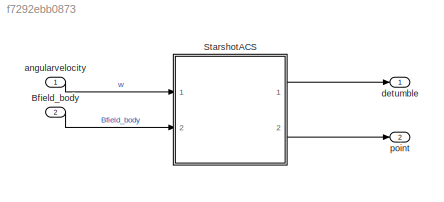
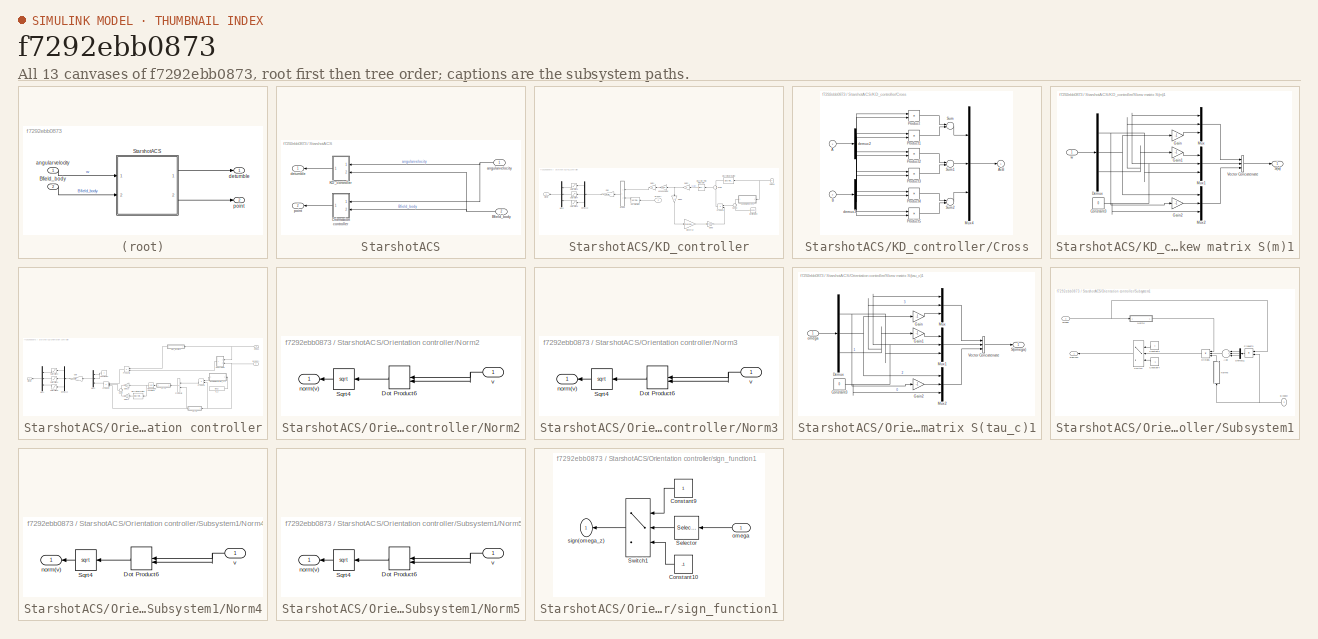
[diagram: thumbnail index - all 13 canvases of the model, root first then tree order]
MODEL slx_f7292ebb0873
KIND model
CONFIG AbsTol = auto
CONFIG EnableMultiTasking = off
CONFIG FixedStep = .1
CONFIG MaxStep = 4.0
CONFIG MinStep = .001
CONFIG RelTol = 1e-6
CONFIG SampleTimeConstraint = Unconstrained
CONFIG Solver = FixedStepAuto
CONFIG SolverName = FixedStepAuto
CONFIG StartTime = 0.0
CONFIG StopTime = 6000
BLOCK [Inport] Bfield_body
  IconDisplay = Port number
  Interpolate = off
  OutDataTypeStr = double
  Port = 2
  PortDimensions = 3
  SampleTime = [0.10000000000000001 0]
  SignalType = real
  VarSizeSig = No
BLOCK [SubSystem] StarshotACS
  Ports = [2, 2]
  RequestExecContextInheritance = off
  Tag = starshotsimv5
  TreatAsAtomicUnit = on
  Variant = off
BLOCK [Inport] StarshotACS/Bfield_body
  IconDisplay = Port number
  Port = 2
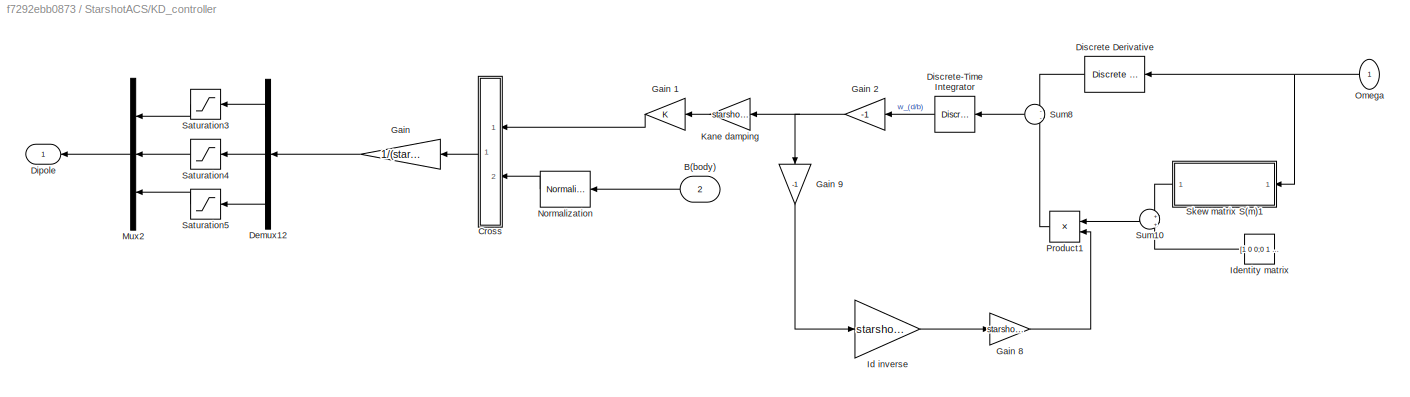
BLOCK [SubSystem] StarshotACS/KD_controller
  Ports = [2, 1]
  RequestExecContextInheritance = off
  Variant = off
BLOCK [Inport] StarshotACS/KD_controller/B(body)
  IconDisplay = Port number
  Port = 2
BLOCK [SubSystem] StarshotACS/KD_controller/Cross
  Ports = [2, 1]
  RequestExecContextInheritance = off
  Variant = off
BLOCK [Inport] StarshotACS/KD_controller/Cross/A
  IconDisplay = Port number
BLOCK [Outport] StarshotACS/KD_controller/Cross/AxB
  IconDisplay = Port number
  InitialOutput = 0
BLOCK [Inport] StarshotACS/KD_controller/Cross/B
  IconDisplay = Port number
  Port = 2
BLOCK [Mux] StarshotACS/KD_controller/Cross/Mux4
  Inputs = 3
  Ports = [3, 1]
BLOCK [Product] StarshotACS/KD_controller/Cross/Product
  Ports = [2, 1]
  RndMeth = Floor
BLOCK [Product] StarshotACS/KD_controller/Cross/Product1
  Ports = [2, 1]
  RndMeth = Floor
BLOCK [Product] StarshotACS/KD_controller/Cross/Product2
  Ports = [2, 1]
  RndMeth = Floor
BLOCK [Product] StarshotACS/KD_controller/Cross/Product3
  Ports = [2, 1]
  RndMeth = Floor
BLOCK [Product] StarshotACS/KD_controller/Cross/Product4
  Ports = [2, 1]
  RndMeth = Floor
BLOCK [Product] StarshotACS/KD_controller/Cross/Product5
  Ports = [2, 1]
  RndMeth = Floor
BLOCK [Sum] StarshotACS/KD_controller/Cross/Sum
  Inputs = +-
  Ports = [2, 1]
BLOCK [Sum] StarshotACS/KD_controller/Cross/Sum1
  Inputs = +-
  Ports = [2, 1]
BLOCK [Sum] StarshotACS/KD_controller/Cross/Sum2
  Inputs = +-
  Ports = [2, 1]
BLOCK [Demux] StarshotACS/KD_controller/Cross/demux2
  Outputs = 3
  Ports = [1, 3]
BLOCK [Demux] StarshotACS/KD_controller/Cross/demux3
  Outputs = 3
  Ports = [1, 3]
BLOCK [Demux] StarshotACS/KD_controller/Demux12
  DisplayOption = bar
  Outputs = 3
  Ports = [1, 3]
BLOCK [Outport] StarshotACS/KD_controller/Dipole
  IconDisplay = Port number
BLOCK [Reference] StarshotACS/KD_controller/Discrete Derivative  REF=simulink/Discrete/Discrete Derivative
  Ports = [1, 1]
  SourceBlock = simulink/Discrete/Discrete Derivative
  SourceProductBaseCode = SL
  SourceProductName = Simulink
  SourceType = Discrete Derivative
BLOCK [DiscreteIntegrator] StarshotACS/KD_controller/Discrete-Time Integrator
  ICPrevOutput = DiscIntNeverNeededParam
  ICPrevScaledInput = DiscIntNeverNeededParam
  InitialCondition = starshot.cmd.wdb0
  InitialConditionSetting = State (most efficient)
  Ports = [1, 1]
  SampleTime = -1
BLOCK [Gain] StarshotACS/KD_controller/Gain
  Gain = 1/(starshot.magnetorq.A*starshot.magnetorq.n)
  OutDataTypeStr = Inherit: Inherit via internal rule
  ParamDataTypeStr = Inherit: Inherit via internal rule
  SaturateOnIntegerOverflow = off
BLOCK [Gain] StarshotACS/KD_controller/Gain 1
BLOCK [Gain] StarshotACS/KD_controller/Gain 2
  Gain = -1
BLOCK [Gain] StarshotACS/KD_controller/Gain 8
  Gain = starshot.cmd.c
BLOCK [Gain] StarshotACS/KD_controller/Gain 9
  Gain = -1
BLOCK [Gain] StarshotACS/KD_controller/Id inverse
  Gain = starshot.cmd.invId
  Multiplication = Matrix(K*u)
BLOCK [Constant] StarshotACS/KD_controller/Identity matrix
  Value = [1 0 0;0 1 0;0 0 1]
BLOCK [Gain] StarshotACS/KD_controller/Kane damping
  Gain = starshot.cmd.c
BLOCK [Mux] StarshotACS/KD_controller/Mux2
  DisplayOption = bar
  Inputs = 3
  Ports = [3, 1]
BLOCK [Reference] StarshotACS/KD_controller/Normalization  REF=dspmathops/Normalization
  Ports = [1, 1]
  SourceBlock = dspmathops/Normalization
  SourceProductBaseCode = DS
  SourceProductName = DSP System Toolbox
  SourceType = Normalization
BLOCK [Inport] StarshotACS/KD_controller/Omega
  IconDisplay = Port number
BLOCK [Product] StarshotACS/KD_controller/Product1
  InputSameDT = off
  Multiplication = Matrix(*)
  OutDataTypeStr = Inherit: Inherit via internal rule
  Ports = [2, 1]
  RndMeth = Floor
  SaturateOnIntegerOverflow = off
BLOCK [Saturate] StarshotACS/KD_controller/Saturation3
  InputPortMap = u0
  LowerLimit = -starshot.magnetorq.m_max_x/(starshot.magnetorq.A*starshot.magnetorq.n)
  Ports = [1, 1]
  UpperLimit = starshot.magnetorq.m_max_x/(starshot.magnetorq.A*starshot.magnetorq.n)
BLOCK [Saturate] StarshotACS/KD_controller/Saturation4
  InputPortMap = u0
  LowerLimit = -starshot.magnetorq.m_max_y/(starshot.magnetorq.A*starshot.magnetorq.n)
  Ports = [1, 1]
  UpperLimit = starshot.magnetorq.m_max_y/(starshot.magnetorq.A*starshot.magnetorq.n)
BLOCK [Saturate] StarshotACS/KD_controller/Saturation5
  InputPortMap = u0
  LowerLimit = -starshot.magnetorq.m_max_z/(starshot.magnetorq.A*starshot.magnetorq.n)
  Ports = [1, 1]
  UpperLimit = starshot.magnetorq.m_max_z/(starshot.magnetorq.A*starshot.magnetorq.n)
BLOCK [SubSystem] StarshotACS/KD_controller/Skew matrix S(m)1
  Ports = [1, 1]
  RequestExecContextInheritance = off
  Variant = off
BLOCK [Constant] StarshotACS/KD_controller/Skew matrix S(m)1/Constant3
  Value = 0
BLOCK [Demux] StarshotACS/KD_controller/Skew matrix S(m)1/Demux
  DisplayOption = bar
  Outputs = 3
  Ports = [1, 3]
BLOCK [Gain] StarshotACS/KD_controller/Skew matrix S(m)1/Gain
  Gain = -1
  OutDataTypeStr = Inherit: Inherit via internal rule
  ParamDataTypeStr = Inherit: Inherit via internal rule
  SaturateOnIntegerOverflow = off
BLOCK [Gain] StarshotACS/KD_controller/Skew matrix S(m)1/Gain1
  Gain = -1
  OutDataTypeStr = Inherit: Inherit via internal rule
  ParamDataTypeStr = Inherit: Inherit via internal rule
  SaturateOnIntegerOverflow = off
BLOCK [Gain] StarshotACS/KD_controller/Skew matrix S(m)1/Gain2
  Gain = -1
  OutDataTypeStr = Inherit: Inherit via internal rule
  ParamDataTypeStr = Inherit: Inherit via internal rule
  SaturateOnIntegerOverflow = off
BLOCK [Mux] StarshotACS/KD_controller/Skew matrix S(m)1/Mux
  DisplayOption = bar
  Inputs = 3
  Ports = [3, 1]
BLOCK [Mux] StarshotACS/KD_controller/Skew matrix S(m)1/Mux1
  DisplayOption = bar
  Inputs = 3
  Ports = [3, 1]
BLOCK [Mux] StarshotACS/KD_controller/Skew matrix S(m)1/Mux2
  DisplayOption = bar
  Inputs = 3
  Ports = [3, 1]
BLOCK [Outport] StarshotACS/KD_controller/Skew matrix S(m)1/S(w)
  IconDisplay = Port number
BLOCK [Concatenate] StarshotACS/KD_controller/Skew matrix S(m)1/Vector Concatenate
  ConcatenateDimension = 2
  Mode = Multidimensional array
  NumInputs = 3
  Ports = [3, 1]
BLOCK [Inport] StarshotACS/KD_controller/Skew matrix S(m)1/w
  IconDisplay = Port number
BLOCK [Sum] StarshotACS/KD_controller/Sum10
  IconShape = round
  Inputs = +|+
  Ports = [2, 1]
BLOCK [Sum] StarshotACS/KD_controller/Sum8
  IconShape = round
  InputSameDT = off
  Inputs = --
  OutDataTypeStr = Inherit: Inherit via internal rule
  Ports = [2, 1]
  SaturateOnIntegerOverflow = off
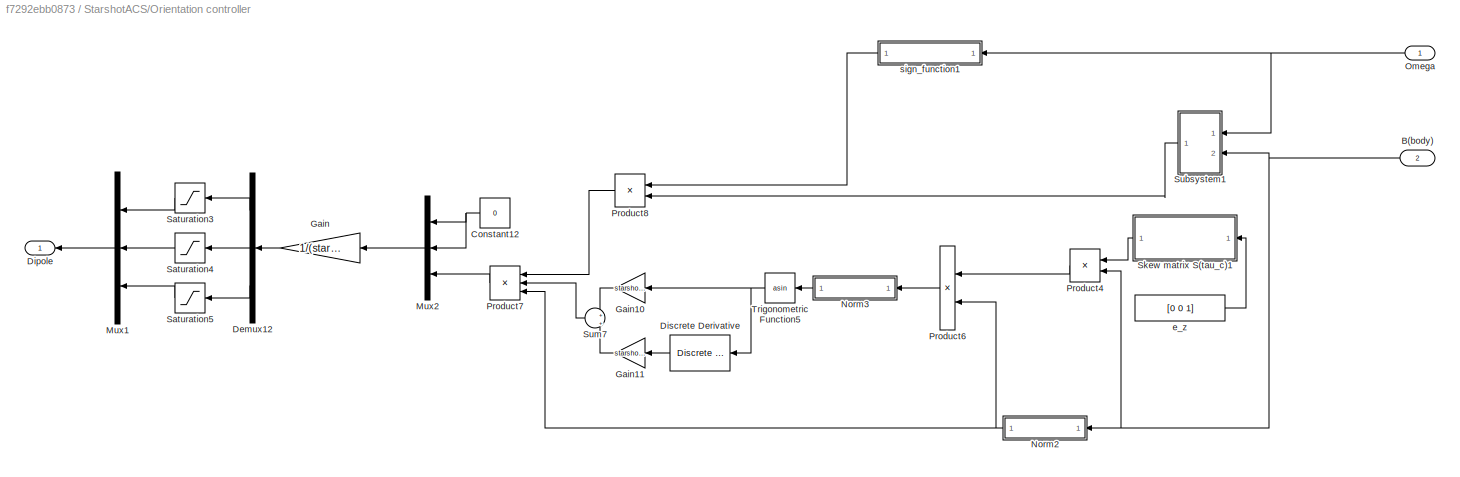
BLOCK [SubSystem] StarshotACS/Orientation controller
  Ports = [2, 1]
  RequestExecContextInheritance = off
  Variant = off
BLOCK [Inport] StarshotACS/Orientation controller/B(body)
  IconDisplay = Port number
  Port = 2
BLOCK [Constant] StarshotACS/Orientation controller/Constant12
  Value = 0
BLOCK [Demux] StarshotACS/Orientation controller/Demux12
  DisplayOption = bar
  Outputs = 3
  Ports = [1, 3]
BLOCK [Outport] StarshotACS/Orientation controller/Dipole
  IconDisplay = Port number
BLOCK [Reference] StarshotACS/Orientation controller/Discrete Derivative  REF=simulink/Discrete/Discrete Derivative
  Ports = [1, 1]
  SourceBlock = simulink/Discrete/Discrete Derivative
  SourceProductBaseCode = SL
  SourceProductName = Simulink
  SourceType = Discrete Derivative
BLOCK [Gain] StarshotACS/Orientation controller/Gain
  Gain = 1/(starshot.magnetorq.A*starshot.magnetorq.n)
  OutDataTypeStr = Inherit: Inherit via internal rule
  ParamDataTypeStr = Inherit: Inherit via internal rule
  SaturateOnIntegerOverflow = off
BLOCK [Gain] StarshotACS/Orientation controller/Gain10
  Gain = starshot.controller.Kp*starshot.IC.massproperties.Izp
  OutDataTypeStr = Inherit: Inherit via internal rule
  ParamDataTypeStr = Inherit: Inherit via internal rule
  SaturateOnIntegerOverflow = off
BLOCK [Gain] StarshotACS/Orientation controller/Gain11
  Gain = starshot.controller.Kd*starshot.IC.massproperties.Izp
  OutDataTypeStr = Inherit: Inherit via internal rule
  ParamDataTypeStr = Inherit: Inherit via internal rule
  SaturateOnIntegerOverflow = off
BLOCK [Mux] StarshotACS/Orientation controller/Mux1
  DisplayOption = bar
  Inputs = 3
  Ports = [3, 1]
BLOCK [Mux] StarshotACS/Orientation controller/Mux2
  DisplayOption = bar
  Inputs = 3
  Ports = [3, 1]
BLOCK [SubSystem] StarshotACS/Orientation controller/Norm2
  Ports = [1, 1]
  RequestExecContextInheritance = off
  Variant = off
BLOCK [DotProduct] StarshotACS/Orientation controller/Norm2/Dot Product6
  OutDataTypeStr = Inherit: Inherit via internal rule
BLOCK [Sqrt] StarshotACS/Orientation controller/Norm2/Sqrt4
BLOCK [Outport] StarshotACS/Orientation controller/Norm2/norm(v)
  IconDisplay = Port number
BLOCK [Inport] StarshotACS/Orientation controller/Norm2/v
  IconDisplay = Port number
BLOCK [SubSystem] StarshotACS/Orientation controller/Norm3
  Ports = [1, 1]
  RequestExecContextInheritance = off
  Variant = off
BLOCK [DotProduct] StarshotACS/Orientation controller/Norm3/Dot Product6
  OutDataTypeStr = Inherit: Inherit via internal rule
BLOCK [Sqrt] StarshotACS/Orientation controller/Norm3/Sqrt4
BLOCK [Outport] StarshotACS/Orientation controller/Norm3/norm(v)
  IconDisplay = Port number
BLOCK [Inport] StarshotACS/Orientation controller/Norm3/v
  IconDisplay = Port number
BLOCK [Inport] StarshotACS/Orientation controller/Omega
  IconDisplay = Port number
BLOCK [Product] StarshotACS/Orientation controller/Product4
  InputSameDT = off
  Multiplication = Matrix(*)
  OutDataTypeStr = Inherit: Inherit via internal rule
  Ports = [2, 1]
  RndMeth = Floor
  SaturateOnIntegerOverflow = off
BLOCK [Product] StarshotACS/Orientation controller/Product6
  InputSameDT = off
  Inputs = */
  OutDataTypeStr = Inherit: Inherit via internal rule
  Ports = [2, 1]
  RndMeth = Floor
  SaturateOnIntegerOverflow = off
BLOCK [Product] StarshotACS/Orientation controller/Product7
  InputSameDT = off
  Inputs = **/
  OutDataTypeStr = Inherit: Inherit via internal rule
  Ports = [3, 1]
  RndMeth = Floor
  SaturateOnIntegerOverflow = off
BLOCK [Product] StarshotACS/Orientation controller/Product8
  InputSameDT = off
  Inputs = **
  OutDataTypeStr = Inherit: Inherit via internal rule
  Ports = [2, 1]
  RndMeth = Floor
  SaturateOnIntegerOverflow = off
BLOCK [Saturate] StarshotACS/Orientation controller/Saturation3
  InputPortMap = u0
  LowerLimit = -starshot.magnetorq.m_max_x/(starshot.magnetorq.A*starshot.magnetorq.n)
  Ports = [1, 1]
  UpperLimit = starshot.magnetorq.m_max_x/(starshot.magnetorq.A*starshot.magnetorq.n)
BLOCK [Saturate] StarshotACS/Orientation controller/Saturation4
  InputPortMap = u0
  LowerLimit = -starshot.magnetorq.m_max_y/(starshot.magnetorq.A*starshot.magnetorq.n)
  Ports = [1, 1]
  UpperLimit = starshot.magnetorq.m_max_y/(starshot.magnetorq.A*starshot.magnetorq.n)
BLOCK [Saturate] StarshotACS/Orientation controller/Saturation5
  InputPortMap = u0
  LowerLimit = -starshot.magnetorq.m_max_z/(starshot.magnetorq.A*starshot.magnetorq.n)
  Ports = [1, 1]
  UpperLimit = starshot.magnetorq.m_max_z/(starshot.magnetorq.A*starshot.magnetorq.n)
BLOCK [SubSystem] StarshotACS/Orientation controller/Skew matrix S(tau_c)1
  Ports = [1, 1]
  RequestExecContextInheritance = off
  Variant = off
BLOCK [Constant] StarshotACS/Orientation controller/Skew matrix S(tau_c)1/Constant3
  Value = 0
BLOCK [Demux] StarshotACS/Orientation controller/Skew matrix S(tau_c)1/Demux
  DisplayOption = bar
  Outputs = 3
  Ports = [1, 3]
BLOCK [Gain] StarshotACS/Orientation controller/Skew matrix S(tau_c)1/Gain
  Gain = -1
  OutDataTypeStr = Inherit: Inherit via internal rule
  ParamDataTypeStr = Inherit: Inherit via internal rule
  SaturateOnIntegerOverflow = off
BLOCK [Gain] StarshotACS/Orientation controller/Skew matrix S(tau_c)1/Gain1
  Gain = -1
  OutDataTypeStr = Inherit: Inherit via internal rule
  ParamDataTypeStr = Inherit: Inherit via internal rule
  SaturateOnIntegerOverflow = off
BLOCK [Gain] StarshotACS/Orientation controller/Skew matrix S(tau_c)1/Gain2
  Gain = -1
  OutDataTypeStr = Inherit: Inherit via internal rule
  ParamDataTypeStr = Inherit: Inherit via internal rule
  SaturateOnIntegerOverflow = off
BLOCK [Mux] StarshotACS/Orientation controller/Skew matrix S(tau_c)1/Mux
  DisplayOption = bar
  Inputs = 3
  Ports = [3, 1]
BLOCK [Mux] StarshotACS/Orientation controller/Skew matrix S(tau_c)1/Mux1
  DisplayOption = bar
  Inputs = 3
  Ports = [3, 1]
BLOCK [Mux] StarshotACS/Orientation controller/Skew matrix S(tau_c)1/Mux2
  DisplayOption = bar
  Inputs = 3
  Ports = [3, 1]
BLOCK [Outport] StarshotACS/Orientation controller/Skew matrix S(tau_c)1/S(omega)
  IconDisplay = Port number
BLOCK [Concatenate] StarshotACS/Orientation controller/Skew matrix S(tau_c)1/Vector Concatenate
  ConcatenateDimension = 2
  Mode = Multidimensional array
  NumInputs = 3
  Ports = [3, 1]
BLOCK [Inport] StarshotACS/Orientation controller/Skew matrix S(tau_c)1/omega
  IconDisplay = Port number
BLOCK [SubSystem] StarshotACS/Orientation controller/Subsystem1
  Ports = [2, 1]
  RequestExecContextInheritance = off
  Variant = off
BLOCK [Sum] StarshotACS/Orientation controller/Subsystem1/Add
  InputSameDT = off
  Inputs = 3
  OutDataTypeStr = Inherit: Inherit via internal rule
  Ports = [3, 1]
  SaturateOnIntegerOverflow = off
BLOCK [Inport] StarshotACS/Orientation controller/Subsystem1/B(body)
  IconDisplay = Port number
  Port = 2
BLOCK [Constant] StarshotACS/Orientation controller/Subsystem1/Constant3
BLOCK [Constant] StarshotACS/Orientation controller/Subsystem1/Constant4
  Value = -1
BLOCK [Demux] StarshotACS/Orientation controller/Subsystem1/Demux11
  DisplayOption = bar
  Outputs = 3
  Ports = [1, 3]
BLOCK [Product] StarshotACS/Orientation controller/Subsystem1/Divide6
  InputSameDT = off
  Inputs = /*/
  OutDataTypeStr = Inherit: Inherit via internal rule
  Ports = [3, 1]
  RndMeth = Floor
  SaturateOnIntegerOverflow = off
BLOCK [SubSystem] StarshotACS/Orientation controller/Subsystem1/Norm4
  Ports = [1, 1]
  RequestExecContextInheritance = off
  Variant = off
BLOCK [DotProduct] StarshotACS/Orientation controller/Subsystem1/Norm4/Dot Product6
  OutDataTypeStr = Inherit: Inherit via internal rule
BLOCK [Sqrt] StarshotACS/Orientation controller/Subsystem1/Norm4/Sqrt4
BLOCK [Outport] StarshotACS/Orientation controller/Subsystem1/Norm4/norm(v)
  IconDisplay = Port number
BLOCK [Inport] StarshotACS/Orientation controller/Subsystem1/Norm4/v
  IconDisplay = Port number
BLOCK [SubSystem] StarshotACS/Orientation controller/Subsystem1/Norm5
  Ports = [1, 1]
  RequestExecContextInheritance = off
  Variant = off
BLOCK [DotProduct] StarshotACS/Orientation controller/Subsystem1/Norm5/Dot Product6
  OutDataTypeStr = Inherit: Inherit via internal rule
BLOCK [Sqrt] StarshotACS/Orientation controller/Subsystem1/Norm5/Sqrt4
BLOCK [Outport] StarshotACS/Orientation controller/Subsystem1/Norm5/norm(v)
  IconDisplay = Port number
BLOCK [Inport] StarshotACS/Orientation controller/Subsystem1/Norm5/v
  IconDisplay = Port number
BLOCK [Product] StarshotACS/Orientation controller/Subsystem1/Product3
  InputSameDT = off
  OutDataTypeStr = Inherit: Inherit via internal rule
  Ports = [2, 1]
  RndMeth = Floor
  SaturateOnIntegerOverflow = off
BLOCK [Switch] StarshotACS/Orientation controller/Subsystem1/Switch
  Criteria = u2 > Threshold
  InputSameDT = off
  SaturateOnIntegerOverflow = off
  ZeroCross = off
BLOCK [Inport] StarshotACS/Orientation controller/Subsystem1/omega
  IconDisplay = Port number
BLOCK [Outport] StarshotACS/Orientation controller/Subsystem1/sign(cos)
  IconDisplay = Port number
BLOCK [Sum] StarshotACS/Orientation controller/Sum7
  IconShape = round
  InputSameDT = off
  Inputs = +|+
  OutDataTypeStr = Inherit: Inherit via internal rule
  Ports = [2, 1]
  SaturateOnIntegerOverflow = off
BLOCK [Trigonometry] StarshotACS/Orientation controller/Trigonometric Function5
  Operator = asin
  Ports = [1, 1]
BLOCK [Constant] StarshotACS/Orientation controller/e_z
  Value = [0 0 1]
BLOCK [SubSystem] StarshotACS/Orientation controller/sign_function1
  Ports = [1, 1]
  RequestExecContextInheritance = off
  Variant = off
BLOCK [Constant] StarshotACS/Orientation controller/sign_function1/Constant10
  Value = -1
BLOCK [Constant] StarshotACS/Orientation controller/sign_function1/Constant9
BLOCK [Selector] StarshotACS/Orientation controller/sign_function1/Selector
  IndexOptions = Index vector (dialog)
  Indices = [3]
  InputPortWidth = 3
  OutputSizes = 1
  Ports = [1, 1]
BLOCK [Switch] StarshotACS/Orientation controller/sign_function1/Switch1
  InputSameDT = off
  SaturateOnIntegerOverflow = off
  ZeroCross = off
BLOCK [Inport] StarshotACS/Orientation controller/sign_function1/omega
  IconDisplay = Port number
BLOCK [Outport] StarshotACS/Orientation controller/sign_function1/sign(omega_z)
  IconDisplay = Port number
BLOCK [Inport] StarshotACS/angularvelocity
  IconDisplay = Port number
BLOCK [Outport] StarshotACS/detumble
  IconDisplay = Port number
BLOCK [Outport] StarshotACS/point
  IconDisplay = Port number
  Port = 2
BLOCK [Inport] angularvelocity
  IconDisplay = Port number
  Interpolate = off
  OutDataTypeStr = double
  PortDimensions = 3
  SampleTime = [0.10000000000000001 0]
  SignalType = real
  VarSizeSig = No
BLOCK [Outport] detumble
  IconDisplay = Port number
  OutDataTypeStr = double
  PortDimensions = 3
  SampleTime = [0.10000000000000001 0]
  SignalType = real
  VarSizeSig = No
BLOCK [Outport] point
  IconDisplay = Port number
  OutDataTypeStr = double
  Port = 2
  PortDimensions = 3
  SampleTime = [0.10000000000000001 0]
  SignalType = real
  VarSizeSig = No
LINE Bfield_body:1 -> StarshotACS:2
NET StarshotACS/Bfield_body:1 -> StarshotACS/KD_controller:2, StarshotACS/Orientation controller:2
LINE StarshotACS/KD_controller/B(body):1 -> StarshotACS/KD_controller/Normalization:1
LINE StarshotACS/KD_controller/Cross/A:1 -> StarshotACS/KD_controller/Cross/demux2:1
LINE StarshotACS/KD_controller/Cross/B:1 -> StarshotACS/KD_controller/Cross/demux3:1
LINE StarshotACS/KD_controller/Cross/Mux4:1 -> StarshotACS/KD_controller/Cross/AxB:1
LINE StarshotACS/KD_controller/Cross/Product1:1 -> StarshotACS/KD_controller/Cross/Sum:2
LINE StarshotACS/KD_controller/Cross/Product2:1 -> StarshotACS/KD_controller/Cross/Sum1:1
LINE StarshotACS/KD_controller/Cross/Product3:1 -> StarshotACS/KD_controller/Cross/Sum1:2
LINE StarshotACS/KD_controller/Cross/Product4:1 -> StarshotACS/KD_controller/Cross/Sum2:1
LINE StarshotACS/KD_controller/Cross/Product5:1 -> StarshotACS/KD_controller/Cross/Sum2:2
LINE StarshotACS/KD_controller/Cross/Product:1 -> StarshotACS/KD_controller/Cross/Sum:1
LINE StarshotACS/KD_controller/Cross/Sum1:1 -> StarshotACS/KD_controller/Cross/Mux4:2
LINE StarshotACS/KD_controller/Cross/Sum2:1 -> StarshotACS/KD_controller/Cross/Mux4:3
LINE StarshotACS/KD_controller/Cross/Sum:1 -> StarshotACS/KD_controller/Cross/Mux4:1
NET StarshotACS/KD_controller/Cross/demux2:1 -> StarshotACS/KD_controller/Cross/Product3:1, StarshotACS/KD_controller/Cross/Product4:1
NET StarshotACS/KD_controller/Cross/demux2:2 -> StarshotACS/KD_controller/Cross/Product5:1, StarshotACS/KD_controller/Cross/Product:1
NET StarshotACS/KD_controller/Cross/demux2:3 -> StarshotACS/KD_controller/Cross/Product1:1, StarshotACS/KD_controller/Cross/Product2:1
NET StarshotACS/KD_controller/Cross/demux3:1 -> StarshotACS/KD_controller/Cross/Product2:2, StarshotACS/KD_controller/Cross/Product5:2
NET StarshotACS/KD_controller/Cross/demux3:2 -> StarshotACS/KD_controller/Cross/Product1:2, StarshotACS/KD_controller/Cross/Product4:2
NET StarshotACS/KD_controller/Cross/demux3:3 -> StarshotACS/KD_controller/Cross/Product3:2, StarshotACS/KD_controller/Cross/Product:2
LINE StarshotACS/KD_controller/Cross:1 -> StarshotACS/KD_controller/Gain:1
LINE StarshotACS/KD_controller/Demux12:1 -> StarshotACS/KD_controller/Saturation3:1
LINE StarshotACS/KD_controller/Demux12:2 -> StarshotACS/KD_controller/Saturation4:1
LINE StarshotACS/KD_controller/Demux12:3 -> StarshotACS/KD_controller/Saturation5:1
LINE StarshotACS/KD_controller/Discrete Derivative:1 -> StarshotACS/KD_controller/Sum8:1
LINE StarshotACS/KD_controller/Discrete-Time Integrator:1 -> StarshotACS/KD_controller/Gain 2:1
LINE StarshotACS/KD_controller/Gain 1:1 -> StarshotACS/KD_controller/Cross:1
NET StarshotACS/KD_controller/Gain 2:1 -> StarshotACS/KD_controller/Gain 9:1, StarshotACS/KD_controller/Kane damping:1
LINE StarshotACS/KD_controller/Gain 8:1 -> StarshotACS/KD_controller/Product1:2
LINE StarshotACS/KD_controller/Gain 9:1 -> StarshotACS/KD_controller/Id inverse:1
LINE StarshotACS/KD_controller/Gain:1 -> StarshotACS/KD_controller/Demux12:1
LINE StarshotACS/KD_controller/Id inverse:1 -> StarshotACS/KD_controller/Gain 8:1
LINE StarshotACS/KD_controller/Identity matrix:1 -> StarshotACS/KD_controller/Sum10:2
LINE StarshotACS/KD_controller/Kane damping:1 -> StarshotACS/KD_controller/Gain 1:1
LINE StarshotACS/KD_controller/Mux2:1 -> StarshotACS/KD_controller/Dipole:1
LINE StarshotACS/KD_controller/Normalization:1 -> StarshotACS/KD_controller/Cross:2
NET StarshotACS/KD_controller/Omega:1 -> StarshotACS/KD_controller/Discrete Derivative:1, StarshotACS/KD_controller/Skew matrix S(m)1:1
LINE StarshotACS/KD_controller/Product1:1 -> StarshotACS/KD_controller/Sum8:2
LINE StarshotACS/KD_controller/Saturation3:1 -> StarshotACS/KD_controller/Mux2:1
LINE StarshotACS/KD_controller/Saturation4:1 -> StarshotACS/KD_controller/Mux2:2
LINE StarshotACS/KD_controller/Saturation5:1 -> StarshotACS/KD_controller/Mux2:3
NET StarshotACS/KD_controller/Skew matrix S(m)1/Constant3:1 -> StarshotACS/KD_controller/Skew matrix S(m)1/Mux1:2, StarshotACS/KD_controller/Skew matrix S(m)1/Mux2:3, StarshotACS/KD_controller/Skew matrix S(m)1/Mux:1
NET StarshotACS/KD_controller/Skew matrix S(m)1/Demux:1 -> StarshotACS/KD_controller/Skew matrix S(m)1/Gain2:1, StarshotACS/KD_controller/Skew matrix S(m)1/Mux1:3
NET StarshotACS/KD_controller/Skew matrix S(m)1/Demux:2 -> StarshotACS/KD_controller/Skew matrix S(m)1/Gain:1, StarshotACS/KD_controller/Skew matrix S(m)1/Mux2:1
NET StarshotACS/KD_controller/Skew matrix S(m)1/Demux:3 -> StarshotACS/KD_controller/Skew matrix S(m)1/Gain1:1, StarshotACS/KD_controller/Skew matrix S(m)1/Mux:2
LINE StarshotACS/KD_controller/Skew matrix S(m)1/Gain1:1 -> StarshotACS/KD_controller/Skew matrix S(m)1/Mux1:1
LINE StarshotACS/KD_controller/Skew matrix S(m)1/Gain2:1 -> StarshotACS/KD_controller/Skew matrix S(m)1/Mux2:2
LINE StarshotACS/KD_controller/Skew matrix S(m)1/Gain:1 -> StarshotACS/KD_controller/Skew matrix S(m)1/Mux:3
LINE StarshotACS/KD_controller/Skew matrix S(m)1/Mux1:1 -> StarshotACS/KD_controller/Skew matrix S(m)1/Vector Concatenate:2
LINE StarshotACS/KD_controller/Skew matrix S(m)1/Mux2:1 -> StarshotACS/KD_controller/Skew matrix S(m)1/Vector Concatenate:3
LINE StarshotACS/KD_controller/Skew matrix S(m)1/Mux:1 -> StarshotACS/KD_controller/Skew matrix S(m)1/Vector Concatenate:1
LINE StarshotACS/KD_controller/Skew matrix S(m)1/Vector Concatenate:1 -> StarshotACS/KD_controller/Skew matrix S(m)1/S(w):1
LINE StarshotACS/KD_controller/Skew matrix S(m)1/w:1 -> StarshotACS/KD_controller/Skew matrix S(m)1/Demux:1
LINE StarshotACS/KD_controller/Skew matrix S(m)1:1 -> StarshotACS/KD_controller/Sum10:1
LINE StarshotACS/KD_controller/Sum10:1 -> StarshotACS/KD_controller/Product1:1
LINE StarshotACS/KD_controller/Sum8:1 -> StarshotACS/KD_controller/Discrete-Time Integrator:1
LINE StarshotACS/KD_controller:1 -> StarshotACS/detumble:1
NET StarshotACS/Orientation controller/B(body):1 -> StarshotACS/Orientation controller/Norm2:1, StarshotACS/Orientation controller/Product4:2, StarshotACS/Orientation controller/Subsystem1:2
NET StarshotACS/Orientation controller/Constant12:1 -> StarshotACS/Orientation controller/Mux2:1, StarshotACS/Orientation controller/Mux2:2
LINE StarshotACS/Orientation controller/Demux12:1 -> StarshotACS/Orientation controller/Saturation3:1
LINE StarshotACS/Orientation controller/Demux12:2 -> StarshotACS/Orientation controller/Saturation4:1
LINE StarshotACS/Orientation controller/Demux12:3 -> StarshotACS/Orientation controller/Saturation5:1
LINE StarshotACS/Orientation controller/Discrete Derivative:1 -> StarshotACS/Orientation controller/Gain11:1
LINE StarshotACS/Orientation controller/Gain10:1 -> StarshotACS/Orientation controller/Sum7:1
LINE StarshotACS/Orientation controller/Gain11:1 -> StarshotACS/Orientation controller/Sum7:2
LINE StarshotACS/Orientation controller/Gain:1 -> StarshotACS/Orientation controller/Demux12:1
LINE StarshotACS/Orientation controller/Mux1:1 -> StarshotACS/Orientation controller/Dipole:1
LINE StarshotACS/Orientation controller/Mux2:1 -> StarshotACS/Orientation controller/Gain:1
LINE StarshotACS/Orientation controller/Norm2/Dot Product6:1 -> StarshotACS/Orientation controller/Norm2/Sqrt4:1
LINE StarshotACS/Orientation controller/Norm2/Sqrt4:1 -> StarshotACS/Orientation controller/Norm2/norm(v):1
NET StarshotACS/Orientation controller/Norm2/v:1 -> StarshotACS/Orientation controller/Norm2/Dot Product6:1, StarshotACS/Orientation controller/Norm2/Dot Product6:2
NET StarshotACS/Orientation controller/Norm2:1 -> StarshotACS/Orientation controller/Product6:2, StarshotACS/Orientation controller/Product7:3
LINE StarshotACS/Orientation controller/Norm3/Dot Product6:1 -> StarshotACS/Orientation controller/Norm3/Sqrt4:1
LINE StarshotACS/Orientation controller/Norm3/Sqrt4:1 -> StarshotACS/Orientation controller/Norm3/norm(v):1
NET StarshotACS/Orientation controller/Norm3/v:1 -> StarshotACS/Orientation controller/Norm3/Dot Product6:1, StarshotACS/Orientation controller/Norm3/Dot Product6:2
LINE StarshotACS/Orientation controller/Norm3:1 -> StarshotACS/Orientation controller/Trigonometric Function5:1
NET StarshotACS/Orientation controller/Omega:1 -> StarshotACS/Orientation controller/Subsystem1:1, StarshotACS/Orientation controller/sign_function1:1
LINE StarshotACS/Orientation controller/Product4:1 -> StarshotACS/Orientation controller/Product6:1
LINE StarshotACS/Orientation controller/Product6:1 -> StarshotACS/Orientation controller/Norm3:1
LINE StarshotACS/Orientation controller/Product7:1 -> StarshotACS/Orientation controller/Mux2:3
LINE StarshotACS/Orientation controller/Product8:1 -> StarshotACS/Orientation controller/Product7:1
LINE StarshotACS/Orientation controller/Saturation3:1 -> StarshotACS/Orientation controller/Mux1:1
LINE StarshotACS/Orientation controller/Saturation4:1 -> StarshotACS/Orientation controller/Mux1:2
LINE StarshotACS/Orientation controller/Saturation5:1 -> StarshotACS/Orientation controller/Mux1:3
NET StarshotACS/Orientation controller/Skew matrix S(tau_c)1/Constant3:1 -> StarshotACS/Orientation controller/Skew matrix S(tau_c)1/Mux1:2, StarshotACS/Orientation controller/Skew matrix S(tau_c)1/Mux2:3, StarshotACS/Orientation controller/Skew matrix S(tau_c)1/Mux:1
NET StarshotACS/Orientation controller/Skew matrix S(tau_c)1/Demux:1 -> StarshotACS/Orientation controller/Skew matrix S(tau_c)1/Gain2:1, StarshotACS/Orientation controller/Skew matrix S(tau_c)1/Mux1:3
NET StarshotACS/Orientation controller/Skew matrix S(tau_c)1/Demux:2 -> StarshotACS/Orientation controller/Skew matrix S(tau_c)1/Gain:1, StarshotACS/Orientation controller/Skew matrix S(tau_c)1/Mux2:1
NET StarshotACS/Orientation controller/Skew matrix S(tau_c)1/Demux:3 -> StarshotACS/Orientation controller/Skew matrix S(tau_c)1/Gain1:1, StarshotACS/Orientation controller/Skew matrix S(tau_c)1/Mux:2
LINE StarshotACS/Orientation controller/Skew matrix S(tau_c)1/Gain1:1 -> StarshotACS/Orientation controller/Skew matrix S(tau_c)1/Mux1:1
LINE StarshotACS/Orientation controller/Skew matrix S(tau_c)1/Gain2:1 -> StarshotACS/Orientation controller/Skew matrix S(tau_c)1/Mux2:2
LINE StarshotACS/Orientation controller/Skew matrix S(tau_c)1/Gain:1 -> StarshotACS/Orientation controller/Skew matrix S(tau_c)1/Mux:3
LINE StarshotACS/Orientation controller/Skew matrix S(tau_c)1/Mux1:1 -> StarshotACS/Orientation controller/Skew matrix S(tau_c)1/Vector Concatenate:2
LINE StarshotACS/Orientation controller/Skew matrix S(tau_c)1/Mux2:1 -> StarshotACS/Orientation controller/Skew matrix S(tau_c)1/Vector Concatenate:3
LINE StarshotACS/Orientation controller/Skew matrix S(tau_c)1/Mux:1 -> StarshotACS/Orientation controller/Skew matrix S(tau_c)1/Vector Concatenate:1
LINE StarshotACS/Orientation controller/Skew matrix S(tau_c)1/Vector Concatenate:1 -> StarshotACS/Orientation controller/Skew matrix S(tau_c)1/S(omega):1
LINE StarshotACS/Orientation controller/Skew matrix S(tau_c)1/omega:1 -> StarshotACS/Orientation controller/Skew matrix S(tau_c)1/Demux:1
LINE StarshotACS/Orientation controller/Skew matrix S(tau_c)1:1 -> StarshotACS/Orientation controller/Product4:1
LINE StarshotACS/Orientation controller/Subsystem1/Add:1 -> StarshotACS/Orientation controller/Subsystem1/Divide6:2
NET StarshotACS/Orientation controller/Subsystem1/B(body):1 -> StarshotACS/Orientation controller/Subsystem1/Norm5:1, StarshotACS/Orientation controller/Subsystem1/Product3:2
LINE StarshotACS/Orientation controller/Subsystem1/Constant3:1 -> StarshotACS/Orientation controller/Subsystem1/Switch:1
LINE StarshotACS/Orientation controller/Subsystem1/Constant4:1 -> StarshotACS/Orientation controller/Subsystem1/Switch:3
LINE StarshotACS/Orientation controller/Subsystem1/Demux11:1 -> StarshotACS/Orientation controller/Subsystem1/Add:1
LINE StarshotACS/Orientation controller/Subsystem1/Demux11:2 -> StarshotACS/Orientation controller/Subsystem1/Add:2
LINE StarshotACS/Orientation controller/Subsystem1/Demux11:3 -> StarshotACS/Orientation controller/Subsystem1/Add:3
LINE StarshotACS/Orientation controller/Subsystem1/Divide6:1 -> StarshotACS/Orientation controller/Subsystem1/Switch:2
LINE StarshotACS/Orientation controller/Subsystem1/Norm4/Dot Product6:1 -> StarshotACS/Orientation controller/Subsystem1/Norm4/Sqrt4:1
LINE StarshotACS/Orientation controller/Subsystem1/Norm4/Sqrt4:1 -> StarshotACS/Orientation controller/Subsystem1/Norm4/norm(v):1
NET StarshotACS/Orientation controller/Subsystem1/Norm4/v:1 -> StarshotACS/Orientation controller/Subsystem1/Norm4/Dot Product6:1, StarshotACS/Orientation controller/Subsystem1/Norm4/Dot Product6:2
LINE StarshotACS/Orientation controller/Subsystem1/Norm4:1 -> StarshotACS/Orientation controller/Subsystem1/Divide6:1
LINE StarshotACS/Orientation controller/Subsystem1/Norm5/Dot Product6:1 -> StarshotACS/Orientation controller/Subsystem1/Norm5/Sqrt4:1
LINE StarshotACS/Orientation controller/Subsystem1/Norm5/Sqrt4:1 -> StarshotACS/Orientation controller/Subsystem1/Norm5/norm(v):1
NET StarshotACS/Orientation controller/Subsystem1/Norm5/v:1 -> StarshotACS/Orientation controller/Subsystem1/Norm5/Dot Product6:1, StarshotACS/Orientation controller/Subsystem1/Norm5/Dot Product6:2
LINE StarshotACS/Orientation controller/Subsystem1/Norm5:1 -> StarshotACS/Orientation controller/Subsystem1/Divide6:3
LINE StarshotACS/Orientation controller/Subsystem1/Product3:1 -> StarshotACS/Orientation controller/Subsystem1/Demux11:1
LINE StarshotACS/Orientation controller/Subsystem1/Switch:1 -> StarshotACS/Orientation controller/Subsystem1/sign(cos):1
NET StarshotACS/Orientation controller/Subsystem1/omega:1 -> StarshotACS/Orientation controller/Subsystem1/Norm4:1, StarshotACS/Orientation controller/Subsystem1/Product3:1
LINE StarshotACS/Orientation controller/Subsystem1:1 -> StarshotACS/Orientation controller/Product8:2
LINE StarshotACS/Orientation controller/Sum7:1 -> StarshotACS/Orientation controller/Product7:2
NET StarshotACS/Orientation controller/Trigonometric Function5:1 -> StarshotACS/Orientation controller/Discrete Derivative:1, StarshotACS/Orientation controller/Gain10:1
LINE StarshotACS/Orientation controller/e_z:1 -> StarshotACS/Orientation controller/Skew matrix S(tau_c)1:1
LINE StarshotACS/Orientation controller/sign_function1/Constant10:1 -> StarshotACS/Orientation controller/sign_function1/Switch1:3
LINE StarshotACS/Orientation controller/sign_function1/Constant9:1 -> StarshotACS/Orientation controller/sign_function1/Switch1:1
LINE StarshotACS/Orientation controller/sign_function1/Selector:1 -> StarshotACS/Orientation controller/sign_function1/Switch1:2
LINE StarshotACS/Orientation controller/sign_function1/Switch1:1 -> StarshotACS/Orientation controller/sign_function1/sign(omega_z):1
LINE StarshotACS/Orientation controller/sign_function1/omega:1 -> StarshotACS/Orientation controller/sign_function1/Selector:1
LINE StarshotACS/Orientation controller/sign_function1:1 -> StarshotACS/Orientation controller/Product8:1
LINE StarshotACS/Orientation controller:1 -> StarshotACS/point:1
NET StarshotACS/angularvelocity:1 -> StarshotACS/KD_controller:1, StarshotACS/Orientation controller:1
LINE StarshotACS:1 -> detumble:1
LINE StarshotACS:2 -> point:1
LINE angularvelocity:1 -> StarshotACS:1
note: NET lines group one-source signal fan-out (src -> all destinations, sorted); 1:1 wires keep LINE
